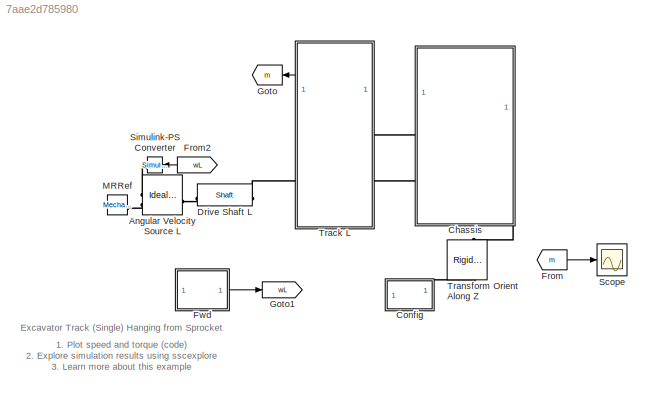
MODEL slx_7aae2d785980
KIND model
CONFIG AbsTol = 1e-3
CONFIG FixedStep = 2e-4
CONFIG SolverName = ode23t
CONFIG StartFcn = tic
CONFIG StopFcn = Elapsed_Sim_Time = toc;\ndisp(['Elapsed Sim Time = ' num2str(Elapsed_Sim_Time)]);\n
CONFIG StopTime = 15
BLOCK [Reference] Angular Velocity Source L  REF=fl_lib/Mechanical/Mechanical Sources/Ideal Angular
Velocity Source
  SourceBlock = fl_lib/Mechanical/Mechanical Sources/Ideal Angular\nVelocity Source
  SourceType = Ideal Angular\nVelocity Source
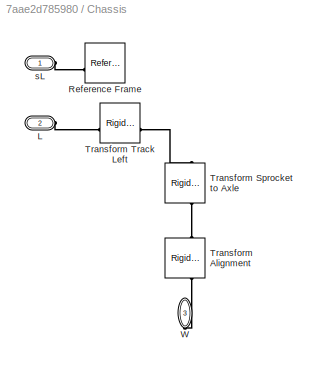
BLOCK [SubSystem] Chassis
  NameLocation = top
  PortSchema = {"entries":[{"content":{"sides":[{"content":{"connectorIds":["LConn1","LConn2"]},"type":"ConnectorPlacement.EquallySpacedRectSide","uuid":"edd0f9cd-c75d-460e-8747-c453c06c3b51"},{"content":{"side":"RIGHT"},"type":"ConnectorPlacement.EquallySpacedRectSide","uuid":"aac0b74e-f978-42e3-a6a1-4bc72aaab1ab"},{"content":{"side":"TOP"},"type":"ConnectorPlacement.EquallySpacedRectSide","uuid":"f25955ca-c2f5...<+362ch>
BLOCK [PMIOPort] Chassis/L
  Port = 2
  Side = Left
BLOCK [Reference] Chassis/Reference Frame  REF=sm_lib/Frames and
Transforms/Reference
Frame
  NameLocation = top
  SourceBlock = sm_lib/Frames and\nTransforms/Reference\nFrame
  SourceType = Reference\nFrame
BLOCK [Reference] Chassis/Transform Alignment  REF=sm_lib/Frames and
Transforms/Rigid
Transform
  NameLocation = left
  SourceBlock = sm_lib/Frames and\nTransforms/Rigid\nTransform
  SourceType = Rigid\nTransform
BLOCK [Reference] Chassis/Transform Sprocket to Axle  REF=sm_lib/Frames and
Transforms/Rigid
Transform
  NameLocation = right
  SourceBlock = sm_lib/Frames and\nTransforms/Rigid\nTransform
  SourceType = Rigid\nTransform
BLOCK [Reference] Chassis/Transform Track Left  REF=sm_lib/Frames and
Transforms/Rigid
Transform
  SourceBlock = sm_lib/Frames and\nTransforms/Rigid\nTransform
  SourceType = Rigid\nTransform
BLOCK [PMIOPort] Chassis/W
  NameLocation = right
  Port = 3
  Side = Right
BLOCK [PMIOPort] Chassis/sL
  Side = Left
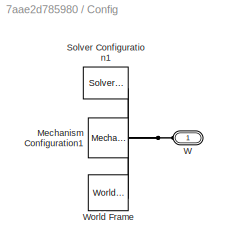
BLOCK [SubSystem] Config
  NameLocation = left
BLOCK [Reference] Config/Mechanism Configuration1  REF=sm_lib/Utilities/Mechanism
Configuration
  SourceBlock = sm_lib/Utilities/Mechanism\nConfiguration
  SourceType = Mechanism\nConfiguration
BLOCK [Reference] Config/Solver Configuration1  REF=nesl_utility/Solver
Configuration
  SourceBlock = nesl_utility/Solver\nConfiguration
  SourceType = Solver\nConfiguration
BLOCK [PMIOPort] Config/W
  Side = Left
BLOCK [Reference] Config/World Frame  REF=sm_lib/Frames and
Transforms/World Frame
  SourceBlock = sm_lib/Frames and\nTransforms/World Frame
  SourceType = World Frame
BLOCK [Reference] Drive Shaft L  REF=sm_trackV_lib_chain_underc_elem/Shaft
  SourceBlock = sm_trackV_lib_chain_underc_elem/Shaft
  SourceType = Driveshaft
BLOCK [From] From
  GotoTag = m
BLOCK [From] From2
  GotoTag = wL
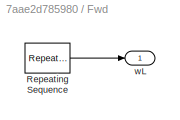
BLOCK [SubSystem] Fwd
  VariantControl = Fwd
BLOCK [Reference] Fwd/Repeating Sequence  REF=simulink/Sources/Repeating
Sequence
  SourceBlock = simulink/Sources/Repeating\nSequence
  SourceType = Repeating table
BLOCK [Outport] Fwd/wL
BLOCK [Goto] Goto
  GotoTag = m
BLOCK [Goto] Goto1
  GotoTag = wL
BLOCK [Reference] MRRef  REF=fl_lib/Mechanical/Rotational Elements/Mechanical
Rotational Reference
  SourceBlock = fl_lib/Mechanical/Rotational Elements/Mechanical\nRotational Reference
  SourceType = Mechanical\nRotational Reference
BLOCK [Scope] Scope
  ActiveDisplayYMaximum = 5645.58158
  ActiveDisplayYMinimum = -3157.84691
  Floating = off
  GraphicalSettings = {"GraphicalSettings":{"LegacySettings":true,"Style":{"AxesScalingProperties":{"ScaleAxesLimitsAtStop":false},"Style":{"AxesColor":"[0 0 0]","ChannelNames":[""],"ColorOrder":"[1 1 0.0666666666666667;0.0745098039215686 0.623529411764706 1;1 0.411764705882353 0.16078431372549;0.392156862745098 0.831372549019608 0.0745098039215686;0.717647058823529 0.274509803921569 1;0.0588235294117647 1 1;1 0.074509...<+399ch>
  MultipleDisplayCache = [{"MaxYLimMag":5645.58158,"MaxYLimReal":5645.58158,"MinYLimMag":0,"MinYLimReal":-3157.84691,"PlotAsMagnitudePhase":false,"ShowGrid":true,"ShowLegend":false,"Title":"%<SignalLabel>","YLabel":""}]
  NumInputPorts = 1
  WasSavedAsWebScope = on
  WindowPosition = [944 571 560 420]
BLOCK [Reference] Simulink-PS Converter  REF=nesl_utility/Simulink-PS
Converter
  NameLocation = top
  SourceBlock = nesl_utility/Simulink-PS\nConverter
  SourceType = Simulink-PS\nConverter
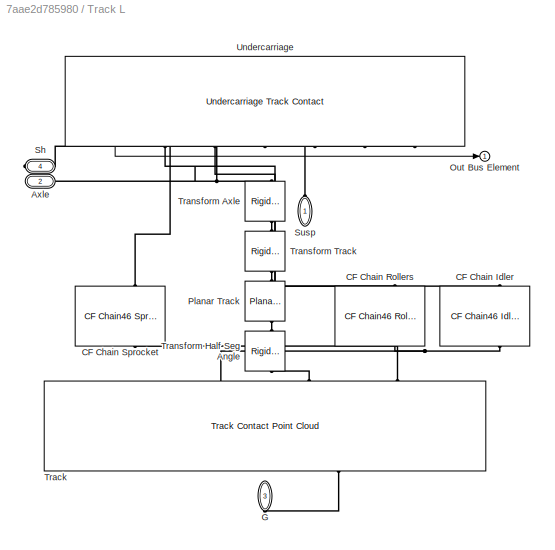
BLOCK [SubSystem] Track L
  LibrarySourceBlock = sm_excv_lower_frame_lib/Undercarriage
BLOCK [PMIOPort] Track L/Axle
  Port = 2
  Side = Left
BLOCK [Reference] Track L/CF Chain Idler  REF=sm_trackV_lib_chain_contact_s46/CF Chain46
Idler
  Commented = on
  LibrarySourceBlock = sm_chain_drive_lib/CF_Idler_full
  NameLocation = right
  SourceBlock = sm_trackV_lib_chain_contact_s46/CF Chain46\nIdler
  SourceType = Contact Force, Full Chain to Idler
BLOCK [Reference] Track L/CF Chain Rollers  REF=sm_trackV_lib_chain_contact_s46r9/CF Chain46
Rollers9
  Commented = on
  LibrarySourceBlock = sm_chain_drive_lib/CF Rollers
  NameLocation = left
  SourceBlock = sm_trackV_lib_chain_contact_s46r9/CF Chain46\nRollers9
  SourceType = Contact Force, Full Chain to all Rollers
BLOCK [Reference] Track L/CF Chain Sprocket  REF=sm_trackV_lib_chain_contact_s46/CF Chain46
Sprocket
  LibrarySourceBlock = sm_chain_drive_lib/CF_Sprocket_full
  NameLocation = left
  SourceBlock = sm_trackV_lib_chain_contact_s46/CF Chain46\nSprocket
  SourceType = Contact Force, Full Chain to Sprocket
BLOCK [PMIOPort] Track L/G
  NameLocation = left
  Port = 3
  Side = Right
BLOCK [Outport] Track L/Out Bus Element
  NameLocation = top
BLOCK [Reference] Track L/Planar Track  REF=sm_lib/Joints/Planar Joint
  NameLocation = left
  SourceBlock = sm_lib/Joints/Planar Joint
  SourceType = Planar Joint
BLOCK [PMIOPort] Track L/Sh
  NameLocation = top
  Port = 4
  Side = Right
BLOCK [PMIOPort] Track L/Susp
  NameLocation = right
  Side = Left
BLOCK [Reference] Track L/Track  REF=sm_trackV_lib_chain_track_s46/Track
Contact
Point Cloud
  NameLocation = left
  SourceBlock = sm_trackV_lib_chain_track_s46/Track\nContact\nPoint Cloud
  SourceType = Segmented Track with Point Cloud
BLOCK [Reference] Track L/Transform Axle  REF=sm_lib/Frames and
Transforms/Rigid
Transform
  NameLocation = left
  SourceBlock = sm_lib/Frames and\nTransforms/Rigid\nTransform
  SourceType = Rigid\nTransform
BLOCK [Reference] Track L/Transform Half Seg Angle  REF=sm_lib/Frames and
Transforms/Rigid
Transform
  NameLocation = left
  SourceBlock = sm_lib/Frames and\nTransforms/Rigid\nTransform
  SourceType = Rigid\nTransform
BLOCK [Reference] Track L/Transform Track  REF=sm_lib/Frames and
Transforms/Rigid
Transform
  NameLocation = left
  SourceBlock = sm_lib/Frames and\nTransforms/Rigid\nTransform
  SourceType = Rigid\nTransform
BLOCK [Reference] Track L/Undercarriage  REF=sm_trackV_lib_chain_underc_i1u2l7/Undercarriage
Track Contact
  NameLocation = left
  SourceBlock = sm_trackV_lib_chain_underc_i1u2l7/Undercarriage\nTrack Contact
  SourceType = Undercarriage for Integration with Track Model
BLOCK [Reference] Transform Orient Along Z  REF=sm_lib/Frames and
Transforms/Rigid
Transform
  NameLocation = left
  SourceBlock = sm_lib/Frames and\nTransforms/Rigid\nTransform
  SourceType = Rigid\nTransform
ANNOTATION (root): 1. Plot speed and torque ( code ) 2. Explore simulation results using sscexplore 3. Learn more about this example
ANNOTATION (root): Excavator Track (Single) Hanging from Sprocket
LINE From2:1 -> Simulink-PS Converter:1
LINE From:1 -> Scope:1
LINE Fwd/Repeating Sequence:1 -> Fwd/wL:1
LINE Fwd:1 -> Goto1:1
LINE Track L/Undercarriage:1 -> Track L/Out Bus Element:1
LINE Track L:1 -> Goto:1
PLINE Angular Velocity Source L:LConn1 -- Drive Shaft L:LConn1
PLINE Angular Velocity Source L:RConn1 -- Simulink-PS Converter:RConn1
PLINE Angular Velocity Source L:RConn2 -- MRRef:LConn1
PLINE Chassis/L:RConn1 -- Chassis/Transform Track Left:RConn1
PLINE Chassis/Reference Frame:RConn1 -- Chassis/sL:RConn1
PLINE Chassis/Transform Alignment:LConn1 -- Chassis/W:RConn1
PLINE Chassis/Transform Alignment:RConn1 -- Chassis/Transform Sprocket to Axle:LConn1
PLINE Chassis/Transform Sprocket to Axle:RConn1 -- Chassis/Transform Track Left:LConn1
PLINE Chassis:LConn1 -- Track L:LConn1
PLINE Chassis:LConn2 -- Track L:LConn2
PLINE Chassis:RConn1 -- Transform Orient Along Z:RConn1
PNET net1: Config/Mechanism Configuration1:RConn1 -- Config/Solver Configuration1:RConn1 -- Config/W:RConn1 -- Config/World Frame:RConn1
PLINE Config:LConn1 -- Transform Orient Along Z:LConn1
PLINE Drive Shaft L:RConn1 -- Track L:RConn2
PNET net2: Track L/Axle:RConn1 -- Track L/Transform Axle:RConn1 -- Track L/Undercarriage:RConn4
PLINE Track L/CF Chain Idler:LConn1 -- Track L/Undercarriage:RConn1
PNET net3: Track L/CF Chain Idler:RConn1 -- Track L/CF Chain Rollers:RConn1 -- Track L/Track:LConn1
PLINE Track L/CF Chain Rollers:LConn1 -- Track L/Undercarriage:RConn2
PLINE Track L/CF Chain Sprocket:LConn1 -- Track L/Undercarriage:RConn5
PLINE Track L/CF Chain Sprocket:RConn1 -- Track L/Track:LConn3
PLINE Track L/G:RConn1 -- Track L/Track:RConn1
PLINE Track L/Planar Track:LConn1 -- Track L/Transform Track:RConn1
PLINE Track L/Planar Track:RConn1 -- Track L/Transform Half Seg Angle:LConn1
PLINE Track L/Sh:RConn1 -- Track L/Undercarriage:RConn6
PLINE Track L/Susp:RConn1 -- Track L/Undercarriage:RConn3
PLINE Track L/Track:LConn2 -- Track L/Transform Half Seg Angle:RConn1
PLINE Track L/Transform Axle:LConn1 -- Track L/Transform Track:LConn1
note: PNET lines group multi-terminal physical nets as a canonical sorted terminal list (undirected conserving connections); 2-terminal nets keep the pairwise PLINE form
